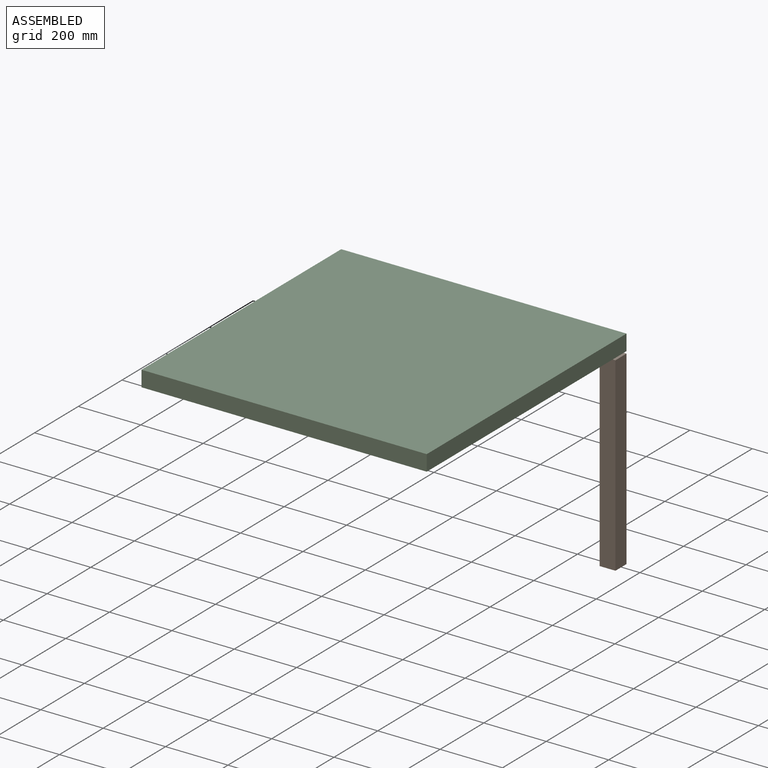
[diagram: assembled view]
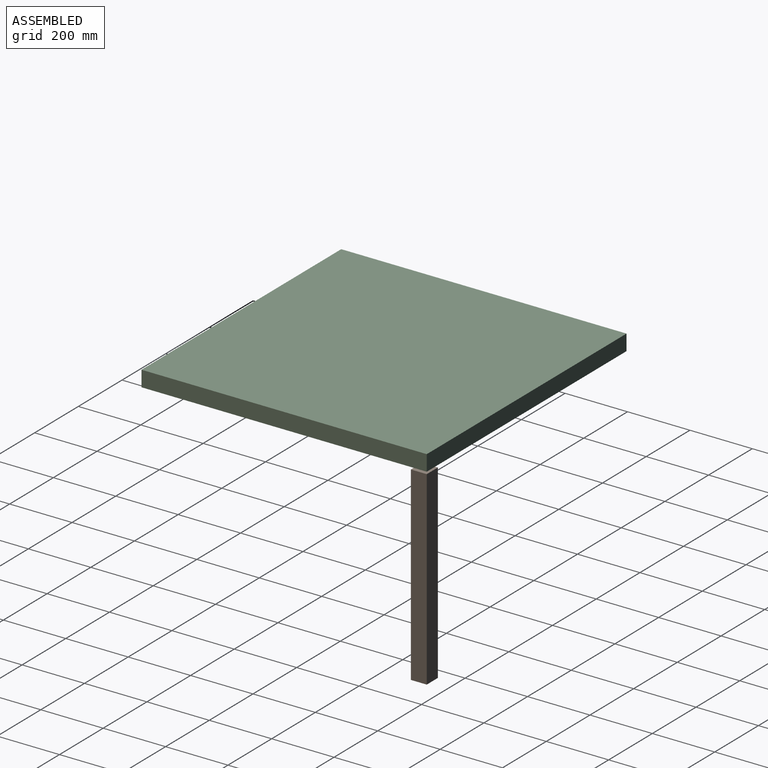
[diagram: assembled view, second angle]
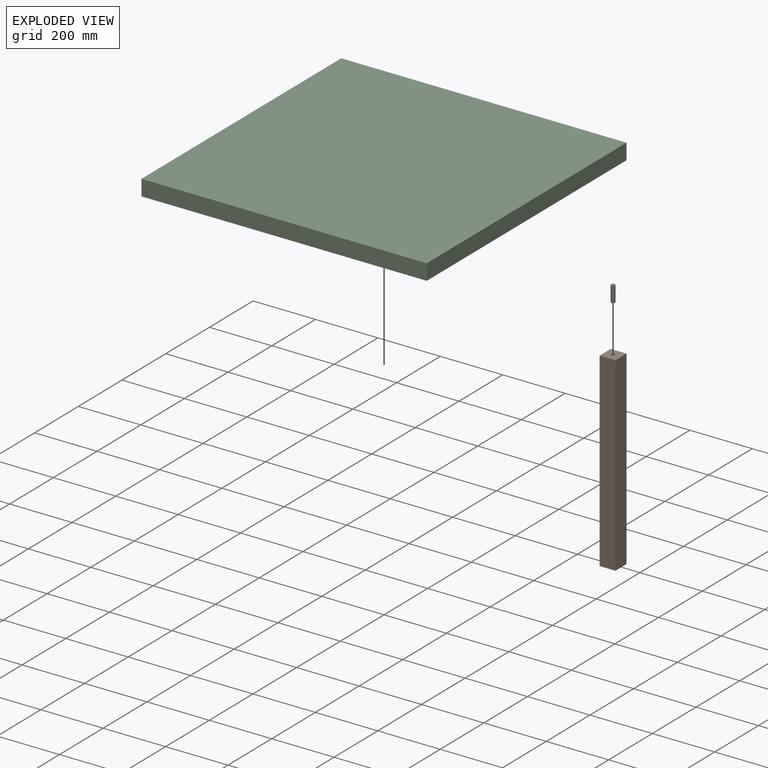
[diagram: exploded view]
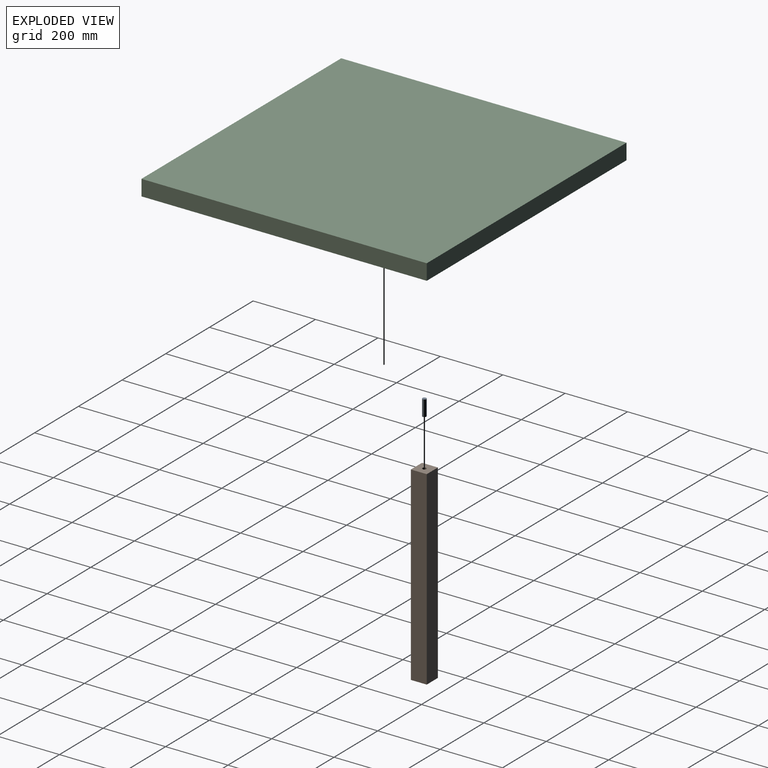
[diagram: exploded view, second angle]
ASSEMBLY  parts=3 mates=2
PART A: 3 faces, bbox 12.7x12.7x50.8 mm
  f0: cylinder r=6.35mm len=50.8mm, axis (0,0,-1), area 2026.8mm2, adj f1,f2
  f1: plane 12.7x12.7mm, normal (0,0,1), area 126.7mm2, adj f0
  f2: plane 12.7x12.7mm, normal (0,0,-1), area 126.7mm2, adj f0
PART B: 8 faces, bbox 50.8x50.8x609.6 mm
  f0: plane 609.6x50.8mm, normal (-1,0,0), area 30967.7mm2, adj f1,f3,f4,f5
  f1: plane 50.8x50.8mm, normal (0,0,-1), area 2580.6mm2, adj f0,f2,f4,f5
  f2: plane 609.6x50.8mm, normal (1,0,0), area 30967.7mm2, adj f1,f3,f4,f5
  f3: plane 50.8x50.8mm, normal (0,0,1), area 2454mm2, adj f0,f2,f4,f5,f6
  f4: plane 609.6x50.8mm, normal (0,-1,0), area 30967.7mm2, adj f0,f1,f2,f3
  f5: plane 609.6x50.8mm, normal (0,1,0), area 30967.7mm2, adj f0,f1,f2,f3
  f6: cylinder r=6.35mm len=25.4mm, axis (0,0,1), area 1013.4mm2, adj f3,f7
  f7: plane 12.7x12.7mm, normal (0,0,1), area 126.7mm2, adj f6
PART C: 14 faces, bbox 914.4x914.4x50.8 mm
  f0: plane 914.4x50.8mm, normal (-1,0,0), area 46451.5mm2, adj f1,f3,f4,f5
  f1: plane 914.4x50.8mm, normal (0,-1,0), area 46451.5mm2, adj f0,f2,f4,f5
  f2: plane 914.4x50.8mm, normal (1,0,0), area 46451.5mm2, adj f1,f3,f4,f5
  f3: plane 914.4x50.8mm, normal (0,1,0), area 46451.5mm2, adj f0,f2,f4,f5
  f4: plane 914.4x914.4mm, normal (0,0,1), area 836127.4mm2, adj f0,f1,f2,f3
  f5: plane 914.4x914.4mm, normal (0,0,-1), area 835620.7mm2, adj f0,f1,f2,f3,f6,f8,f10,f12
  f6: cylinder r=6.35mm len=25.4mm, axis (0,0,-1), area 1013.4mm2, adj f5,f7
  f7: plane 12.7x12.7mm, normal (0,0,-1), area 126.7mm2, adj f6
  f8: cylinder r=6.35mm len=25.4mm, axis (0,0,-1), area 1013.4mm2, adj f5,f9
  f9: plane 12.7x12.7mm, normal (0,0,-1), area 126.7mm2, adj f8
  f10: cylinder r=6.35mm len=25.4mm, axis (0,0,-1), area 1013.4mm2, adj f5,f11
  f11: plane 12.7x12.7mm, normal (0,0,-1), area 126.7mm2, adj f10
  f12: cylinder r=6.35mm len=25.4mm, axis (0,0,-1), area 1013.4mm2, adj f5,f13
  f13: plane 12.7x12.7mm, normal (0,0,-1), area 126.7mm2, adj f12
PLACE A t=(406.4,457.2,-4.57)mm
PLACE B t=(406.4,457.2,-7.19)mm
PLACE C at identity fixed
MATE slider A.f0 <-> B.f6  axis (0,0,-1) through (431.8,431.8,-4.57)mm
MATE slider A.f0 <-> C.f10  axis (0,0,-1) through (431.8,431.8,20.83)mm
